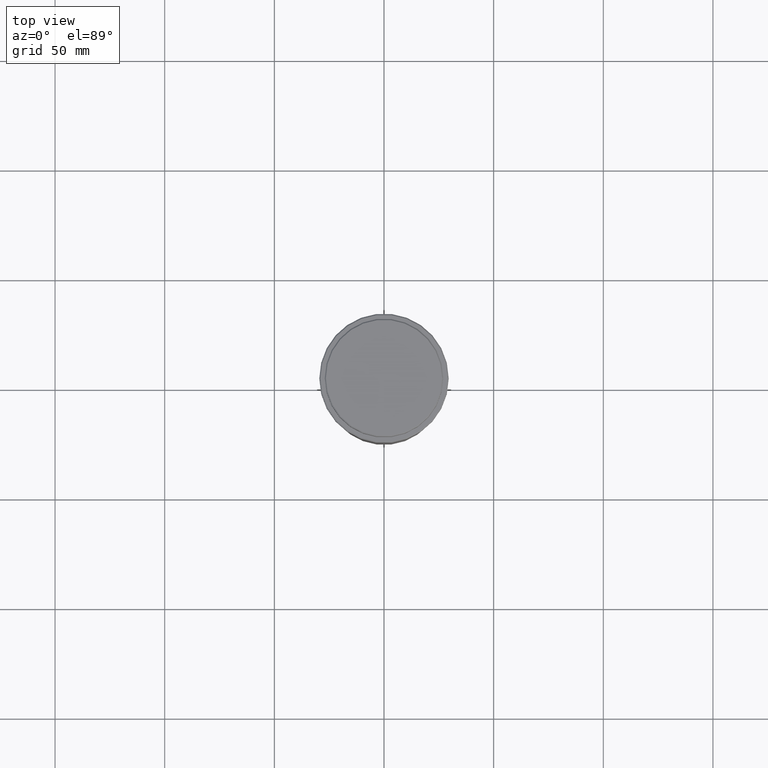
[diagram: clean part render]
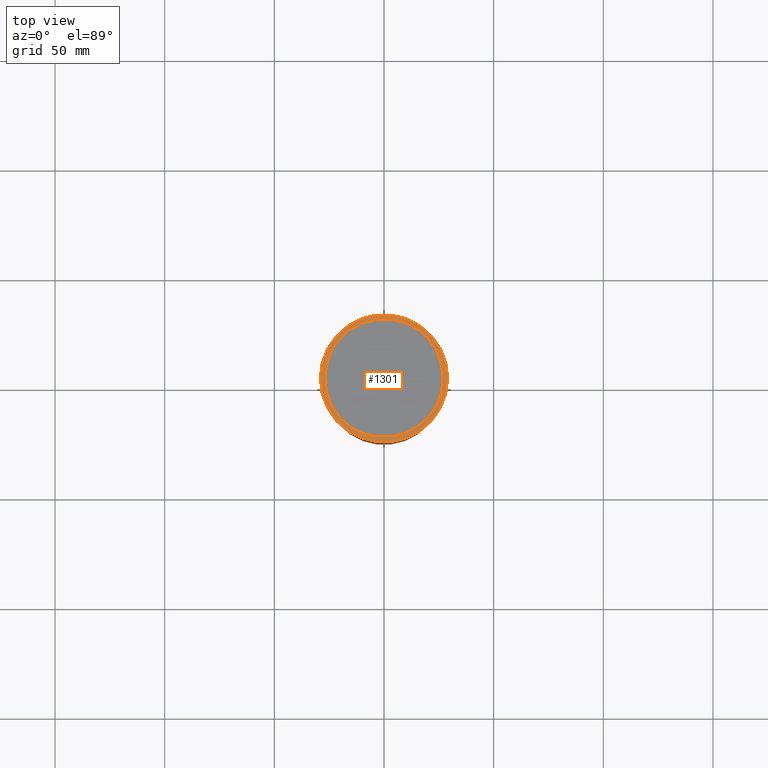
[diagram: same view with one face highlighted and labeled with its STEP entity id]
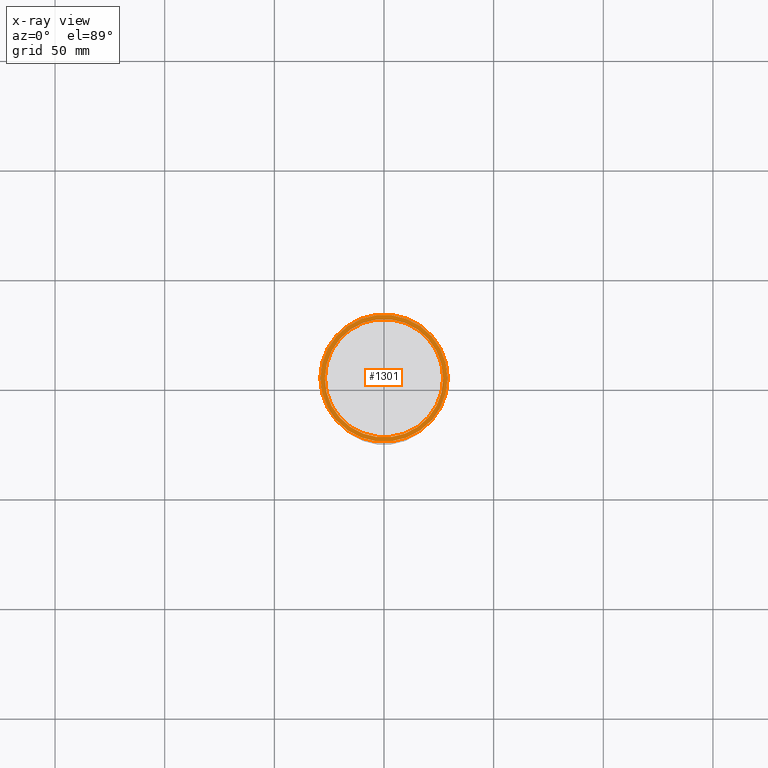
[diagram: x-ray of the same camera — body ghosted, the highlighted face saturated]
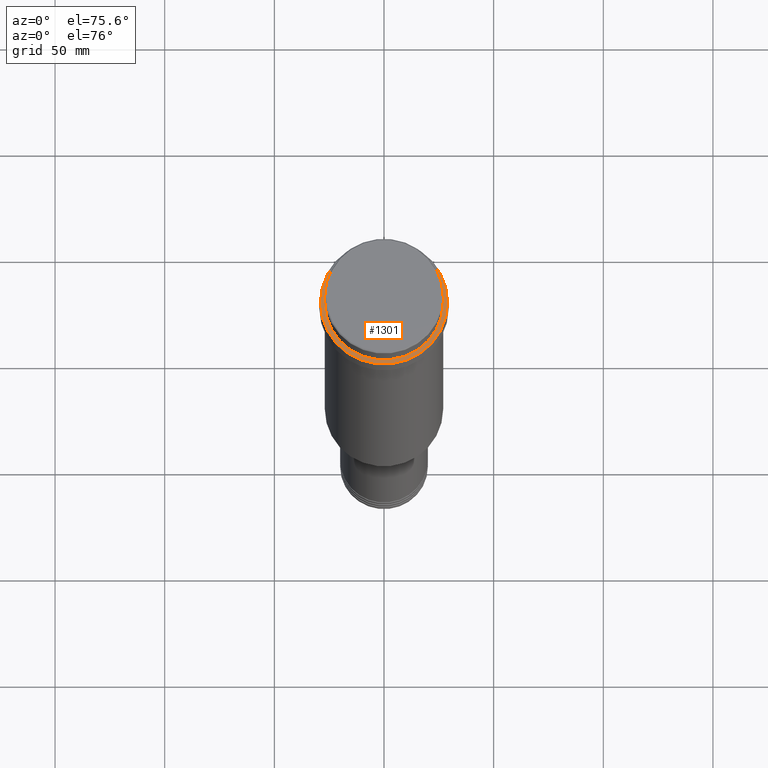
[diagram: same view with one face highlighted and labeled with its STEP entity id]
A machine part, top view. The second image highlights one B-rep face of the part: STEP entity #1301.
The next image is the same camera in x-ray: the body ghosted, the highlighted face saturated — about 0% of this face is hidden behind the body in this view.
A second angle (auxiliary view) of the same face is appended — the face is thin or edge-on in the first view.
In plain terms, the highlighted planar face has unit normal (0, -0, 1).
Its self-contained STEP definition (entity closure, byte-faithful):
#40 = CARTESIAN_POINT ( 'NONE',  ( -28.99999999999991473, 0.000000000000000000, -12.00000000000000355 ) ) ;
#53 = CIRCLE ( 'NONE', #1406, 28.99999999999991473 ) ;
#130 = FACE_BOUND ( 'NONE', #353, .T. ) ;
#183 = ORIENTED_EDGE ( 'NONE', *, *, #1337, .T. ) ;
#190 = VERTEX_POINT ( 'NONE', #40 ) ;
#225 = CARTESIAN_POINT ( 'NONE',  ( 0.000000000000000000, 0.000000000000000000, -12.00000000000000355 ) ) ;
#231 = DIRECTION ( 'NONE',  ( 1.000000000000000000, 0.000000000000000000, 0.000000000000000000 ) ) ;
#250 = DIRECTION ( 'NONE',  ( 0.000000000000000000, 0.000000000000000000, -1.000000000000000000 ) ) ;
#292 = AXIS2_PLACEMENT_3D ( 'NONE', #1035, #857, #1079 ) ;
#296 = VERTEX_POINT ( 'NONE', #1132 ) ;
#331 = CARTESIAN_POINT ( 'NONE',  ( 0.000000000000000000, 26.49999999999999645, -12.00000000000000355 ) ) ;
#352 = DIRECTION ( 'NONE',  ( -0.000000000000000000, -0.000000000000000000, 1.000000000000000000 ) ) ;
#353 = EDGE_LOOP ( 'NONE', ( #1237, #823 ) ) ;
#357 = DIRECTION ( 'NONE',  ( 1.000000000000000000, 0.000000000000000000, 0.000000000000000000 ) ) ;
#381 = CIRCLE ( 'NONE', #1128, 26.99999999999999645 ) ;
#457 = DIRECTION ( 'NONE',  ( 1.000000000000000000, 0.000000000000000000, 0.000000000000000000 ) ) ;
#545 = DIRECTION ( 'NONE',  ( 1.000000000000000000, 0.000000000000000000, 0.000000000000000000 ) ) ;
#560 = DIRECTION ( 'NONE',  ( -0.000000000000000000, -0.000000000000000000, 1.000000000000000000 ) ) ;
#582 = EDGE_CURVE ( 'NONE', #190, #658, #943, .T. ) ;
#658 = VERTEX_POINT ( 'NONE', #1143 ) ;
#823 = ORIENTED_EDGE ( 'NONE', *, *, #1145, .T. ) ;
#857 = DIRECTION ( 'NONE',  ( 0.000000000000000000, 0.000000000000000000, -1.000000000000000000 ) ) ;
#875 = FACE_OUTER_BOUND ( 'NONE', #1053, .T. ) ;
#943 = CIRCLE ( 'NONE', #1357, 28.99999999999991473 ) ;
#999 = CARTESIAN_POINT ( 'NONE',  ( 26.99999999999999645, 0.000000000000000000, -12.00000000000000355 ) ) ;
#1001 = CARTESIAN_POINT ( 'NONE',  ( 0.000000000000000000, 0.000000000000000000, -12.00000000000000355 ) ) ;
#1035 = CARTESIAN_POINT ( 'NONE',  ( 0.000000000000000000, 0.000000000000000000, -12.00000000000000355 ) ) ;
#1040 = AXIS2_PLACEMENT_3D ( 'NONE', #331, #1333, #545 ) ;
#1042 = ORIENTED_EDGE ( 'NONE', *, *, #582, .T. ) ;
#1053 = EDGE_LOOP ( 'NONE', ( #1042, #183 ) ) ;
#1079 = DIRECTION ( 'NONE',  ( 1.000000000000000000, 0.000000000000000000, 0.000000000000000000 ) ) ;
#1128 = AXIS2_PLACEMENT_3D ( 'NONE', #1218, #250, #357 ) ;
#1132 = CARTESIAN_POINT ( 'NONE',  ( -26.99999999999999645, 3.306546357697853339E-15, -12.00000000000000355 ) ) ;
#1143 = CARTESIAN_POINT ( 'NONE',  ( 28.99999999999991473, 3.582091887506003084E-15, -12.00000000000000355 ) ) ;
#1145 = EDGE_CURVE ( 'NONE', #296, #1339, #1220, .T. ) ;
#1210 = PLANE ( 'NONE',  #1040 ) ;
#1218 = CARTESIAN_POINT ( 'NONE',  ( 0.000000000000000000, 0.000000000000000000, -12.00000000000000355 ) ) ;
#1220 = CIRCLE ( 'NONE', #292, 26.99999999999999645 ) ;
#1237 = ORIENTED_EDGE ( 'NONE', *, *, #1306, .T. ) ;
#1301 = ADVANCED_FACE ( 'NONE', ( #875, #130 ), #1210, .T. ) ;
#1306 = EDGE_CURVE ( 'NONE', #1339, #296, #381, .T. ) ;
#1333 = DIRECTION ( 'NONE',  ( 0.000000000000000000, -0.000000000000000000, 1.000000000000000000 ) ) ;
#1337 = EDGE_CURVE ( 'NONE', #658, #190, #53, .T. ) ;
#1339 = VERTEX_POINT ( 'NONE', #999 ) ;
#1357 = AXIS2_PLACEMENT_3D ( 'NONE', #1001, #352, #231 ) ;
#1406 = AXIS2_PLACEMENT_3D ( 'NONE', #225, #560, #457 ) ;